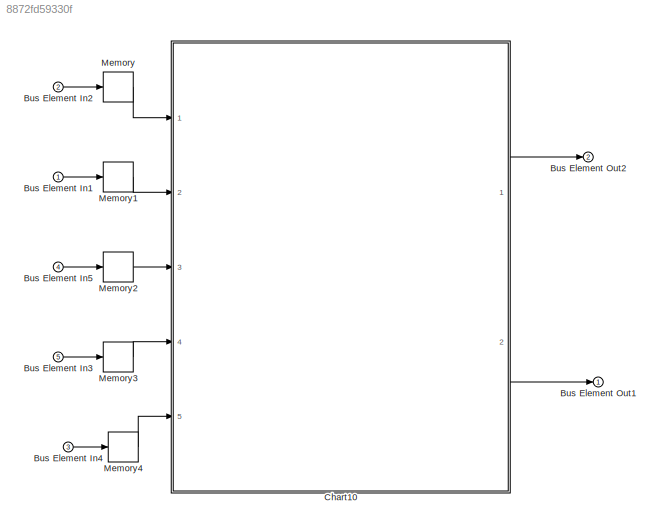
MODEL slx_8872fd59330f
KIND model
CONFIG AbsTol = auto
CONFIG EnableMultiTasking = off
CONFIG FixedStep = auto
CONFIG MaxStep = auto
CONFIG MinStep = auto
CONFIG RelTol = 1e-3
CONFIG SampleTimeConstraint = Unconstrained
CONFIG Solver = VariableStepAuto
CONFIG SolverName = VariableStepAuto
CONFIG StartTime = 0.0
CONFIG StopTime = 10.0
BLOCK [Inport] Bus Element In1
  IconDisplay = Port number
BLOCK [Inport] Bus Element In2
  IconDisplay = Port number
  Port = 2
BLOCK [Inport] Bus Element In3
  IconDisplay = Port number
  Port = 5
BLOCK [Inport] Bus Element In4
  IconDisplay = Port number
  Port = 3
BLOCK [Inport] Bus Element In5
  IconDisplay = Port number
  Port = 4
BLOCK [Outport] Bus Element Out1
  IconDisplay = Port number
BLOCK [Outport] Bus Element Out2
  IconDisplay = Port number
  Port = 2
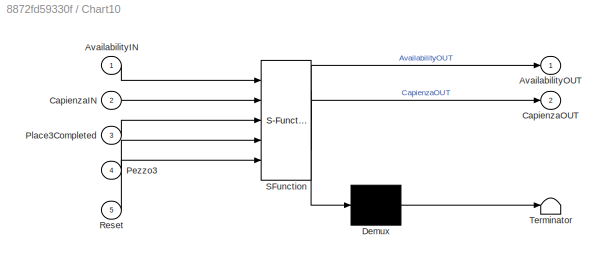
BLOCK [SubSystem] Chart10
  BlockKeywords = __PRM__SERIALIZED__DATA__:Stateflow Chart,Stateflow Diagram
  ErrorFcn = Stateflow.Translate.translate
  PermitHierarchicalResolution = ExplicitOnly
  Ports = [5, 2]
  RequestExecContextInheritance = off
  SFBlockType = Chart
  TreatAsAtomicUnit = on
BLOCK [Demux] Chart10/ Demux 
  Outputs = 1
  Ports = [1, 1]
BLOCK [S-Function] Chart10/ SFunction 
  EnableBusSupport = on
  FunctionName = sf_sfun
  PortCounts = [5 3]
  Ports = [5, 3]
  SFcnIsStateOwnerBlock = off
  SFunctionDeploymentMode = off
  Tag = Stateflow S-Function Scatola3 13
BLOCK [Terminator] Chart10/ Terminator 
BLOCK [Inport] Chart10/AvailabilityIN
  IconDisplay = Port number
BLOCK [Outport] Chart10/AvailabilityOUT
  IconDisplay = Port number
BLOCK [Inport] Chart10/CapienzaIN
  IconDisplay = Port number
  Port = 2
BLOCK [Outport] Chart10/CapienzaOUT
  IconDisplay = Port number
  Port = 2
BLOCK [Inport] Chart10/Pezzo3
  IconDisplay = Port number
  Port = 4
BLOCK [Inport] Chart10/Place3Completed
  IconDisplay = Port number
  Port = 3
BLOCK [Inport] Chart10/Reset
  IconDisplay = Port number
  Port = 5
BLOCK [Memory] Memory
BLOCK [Memory] Memory1
BLOCK [Memory] Memory2
BLOCK [Memory] Memory3
BLOCK [Memory] Memory4
LINE Bus Element In1:1 -> Memory1:1
LINE Bus Element In2:1 -> Memory:1
LINE Bus Element In3:1 -> Memory3:1
LINE Bus Element In4:1 -> Memory4:1
LINE Bus Element In5:1 -> Memory2:1
LINE Chart10:1 -> Bus Element Out2:1
LINE Chart10:2 -> Bus Element Out1:1
LINE Memory1:1 -> Chart10:2
LINE Memory2:1 -> Chart10:3
LINE Memory3:1 -> Chart10:4
LINE Memory4:1 -> Chart10:5
LINE Memory:1 -> Chart10:1
CHART Chart10 states=14 transitions=15
  STATE_LABEL 'Idle\nCapienzaOUT=0;\nAvailabilityOUT=AvailabilityIN;\npause(0.1);'
  STATE_LABEL 'Capienza6\nCapienzaOUT=0;\nAvailabilityOUT=AvailabilityIN;\npause(0.1);'
  STATE_LABEL 'Waiting5'
  STATE_LABEL 'Capienza5\nCapienzaOUT=1;\nAvailabilityOUT=AvailabilityIN;\npause(0.1);'
  STATE_LABEL 'Waiting4'
  STATE_LABEL 'Capienza4\nCapienzaOUT=2;\nAvailabilityOUT=AvailabilityIN;\npause(0.1);'
  STATE_LABEL 'Waiting3'
  STATE_LABEL 'Capienza3\nCapienzaOUT=3;\nAvailabilityOUT=AvailabilityIN;\npause(0.1);'
  STATE_LABEL 'Waiting2'
  STATE_LABEL 'Capienza2\nCapienzaOUT=4;\nAvailabilityOUT=AvailabilityIN;\npause(0.1);'
  STATE_LABEL 'Waiting'
  STATE_LABEL 'Capienza1\nCapienzaOUT=5;\nAvailabilityOUT=AvailabilityIN;\npause(0.1);'
  STATE_LABEL 'Waiting1'
  STATE_LABEL 'Capienza0\nCapienzaOUT=6;\nAvailabilityOUT=AvailabilityIN;\npause(0.1);'
